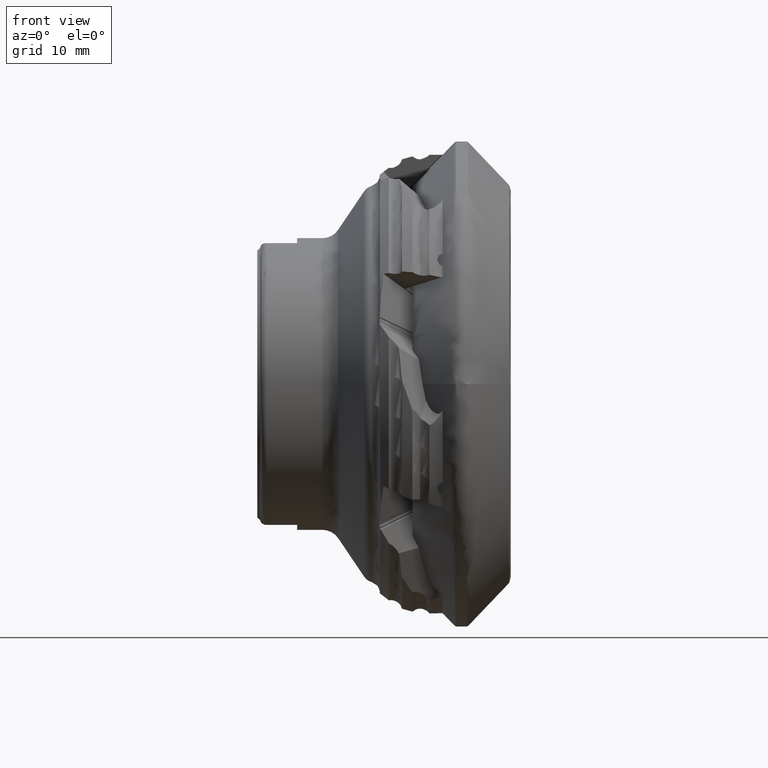
[diagram: clean part render]
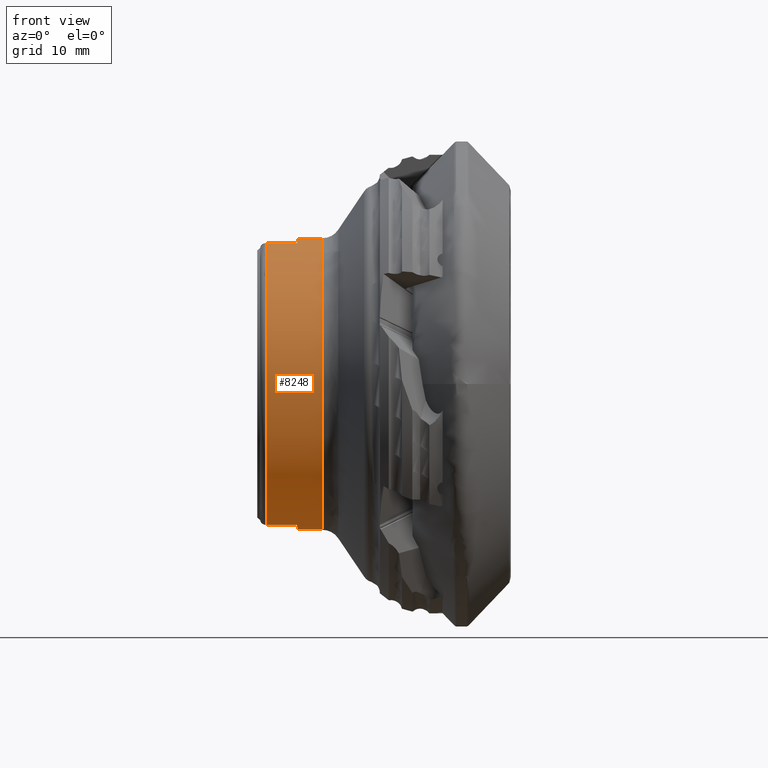
[diagram: same view with one face highlighted and labeled with its STEP entity id]
A machine part, front view. The second image highlights one B-rep face of the part: STEP entity #8248.
In plain terms, the highlighted cylindrical surface (partial cylindrical patch) has radius 23 mm, axis along (1, -0, -0).
Its self-contained STEP definition (entity closure, byte-faithful):
#276 = EDGE_CURVE ( 'NONE', #9477, #6565, #9971, .T. ) ;
#320 = VERTEX_POINT ( 'NONE', #11858 ) ;
#508 = EDGE_CURVE ( 'NONE', #8474, #6565, #8846, .T. ) ;
#662 = CARTESIAN_POINT ( 'NONE',  ( 0.0000000000000000000, 0.0000000000000000000, -22.99999999999999600 ) ) ;
#869 = FACE_OUTER_BOUND ( 'NONE', #4721, .T. ) ;
#965 = CARTESIAN_POINT ( 'NONE',  ( -28.91188524561759000, 0.0000000000000000000, 0.0000000000000000000 ) ) ;
#1382 = EDGE_CURVE ( 'NONE', #7938, #5746, #9422, .T. ) ;
#1549 = CARTESIAN_POINT ( 'NONE',  ( -32.90000000000000600, -5.924000852636052800, 22.22400085263603800 ) ) ;
#1759 = EDGE_CURVE ( 'NONE', #7938, #3006, #10114, .T. ) ;
#1764 = DIRECTION ( 'NONE',  ( 1.000000000000000000, -0.0000000000000000000, -0.0000000000000000000 ) ) ;
#1834 = DIRECTION ( 'NONE',  ( 1.000000000000000000, -0.0000000000000000000, -0.0000000000000000000 ) ) ;
#1905 = ORIENTED_EDGE ( 'NONE', *, *, #5231, .F. ) ;
#1934 = DIRECTION ( 'NONE',  ( 0.0000000000000000000, 0.0000000000000000000, -1.000000000000000000 ) ) ;
#1978 = ORIENTED_EDGE ( 'NONE', *, *, #508, .F. ) ;
#2204 = DIRECTION ( 'NONE',  ( -1.000000000000000000, -0.0000000000000000000, 0.0000000000000000000 ) ) ;
#2225 = ORIENTED_EDGE ( 'NONE', *, *, #276, .T. ) ;
#2432 = CARTESIAN_POINT ( 'NONE',  ( 0.0000000000000000000, -5.924000852636054600, 22.22400085263603100 ) ) ;
#2754 = CARTESIAN_POINT ( 'NONE',  ( -32.90000000000000600, 0.0000000000000000000, -22.99999999999999600 ) ) ;
#3006 = VERTEX_POINT ( 'NONE', #1549 ) ;
#3024 = CIRCLE ( 'NONE', #6798, 22.99999999999999600 ) ;
#3031 = VECTOR ( 'NONE', #11654, 1000.000000000000000 ) ;
#3207 = VECTOR ( 'NONE', #10917, 1000.000000000000000 ) ;
#3325 = CARTESIAN_POINT ( 'NONE',  ( -37.74999999999999300, -5.924000852636056400, 22.22400085263603500 ) ) ;
#3505 = DIRECTION ( 'NONE',  ( 1.000000000000000000, -0.0000000000000000000, -0.0000000000000000000 ) ) ;
#3837 = DIRECTION ( 'NONE',  ( 1.000000000000000000, -0.0000000000000000000, -0.0000000000000000000 ) ) ;
#4234 = VECTOR ( 'NONE', #1834, 1000.000000000000000 ) ;
#4601 = VERTEX_POINT ( 'NONE', #10254 ) ;
#4609 = AXIS2_PLACEMENT_3D ( 'NONE', #10056, #1764, #8260 ) ;
#4686 = CIRCLE ( 'NONE', #11042, 22.99999999999999600 ) ;
#4721 = EDGE_LOOP ( 'NONE', ( #1905, #6305, #7239, #5002, #6315, #6858, #2225, #1978 ) ) ;
#4853 = EDGE_CURVE ( 'NONE', #3006, #320, #4686, .T. ) ;
#5002 = ORIENTED_EDGE ( 'NONE', *, *, #1382, .T. ) ;
#5231 = EDGE_CURVE ( 'NONE', #320, #8474, #10999, .T. ) ;
#5746 = VERTEX_POINT ( 'NONE', #5811 ) ;
#5811 = CARTESIAN_POINT ( 'NONE',  ( -37.74999999999999300, -5.924000852636039500, -22.22400085263603800 ) ) ;
#6305 = ORIENTED_EDGE ( 'NONE', *, *, #4853, .F. ) ;
#6315 = ORIENTED_EDGE ( 'NONE', *, *, #7257, .F. ) ;
#6342 = CARTESIAN_POINT ( 'NONE',  ( 0.0000000000000000000, -5.924000852636040400, -22.22400085263603800 ) ) ;
#6565 = VERTEX_POINT ( 'NONE', #11460 ) ;
#6798 = AXIS2_PLACEMENT_3D ( 'NONE', #9383, #3837, #10285 ) ;
#6858 = ORIENTED_EDGE ( 'NONE', *, *, #11482, .T. ) ;
#7153 = DIRECTION ( 'NONE',  ( 1.000000000000000000, -0.0000000000000000000, -0.0000000000000000000 ) ) ;
#7239 = ORIENTED_EDGE ( 'NONE', *, *, #1759, .F. ) ;
#7257 = EDGE_CURVE ( 'NONE', #4601, #5746, #8147, .T. ) ;
#7368 = DIRECTION ( 'NONE',  ( 1.000000000000000000, -0.0000000000000000000, -0.0000000000000000000 ) ) ;
#7392 = CARTESIAN_POINT ( 'NONE',  ( 0.0000000000000000000, 2.816687638038912000E-015, 22.99999999999999600 ) ) ;
#7758 = CARTESIAN_POINT ( 'NONE',  ( -32.90000000000000600, 0.0000000000000000000, 0.0000000000000000000 ) ) ;
#7813 = VECTOR ( 'NONE', #7153, 1000.000000000000000 ) ;
#7853 = AXIS2_PLACEMENT_3D ( 'NONE', #965, #7368, #1934 ) ;
#7874 = CARTESIAN_POINT ( 'NONE',  ( -28.91188524561759000, 2.897618338086185800E-015, 22.99999999999999600 ) ) ;
#7938 = VERTEX_POINT ( 'NONE', #3325 ) ;
#7976 = CYLINDRICAL_SURFACE ( 'NONE', #4609, 22.99999999999999600 ) ;
#8147 = LINE ( 'NONE', #6342, #3207 ) ;
#8248 = ADVANCED_FACE ( 'NONE', ( #869 ), #7976, .T. ) ;
#8260 = DIRECTION ( 'NONE',  ( 0.0000000000000000000, 0.0000000000000000000, -1.000000000000000000 ) ) ;
#8474 = VERTEX_POINT ( 'NONE', #7874 ) ;
#8699 = DIRECTION ( 'NONE',  ( 0.0000000000000000000, 0.0000000000000000000, -1.000000000000000000 ) ) ;
#8846 = CIRCLE ( 'NONE', #7853, 22.99999999999999600 ) ;
#9073 = CARTESIAN_POINT ( 'NONE',  ( -37.74999999999999300, 0.0000000000000000000, 0.0000000000000000000 ) ) ;
#9383 = CARTESIAN_POINT ( 'NONE',  ( -32.90000000000000600, 0.0000000000000000000, 0.0000000000000000000 ) ) ;
#9422 = CIRCLE ( 'NONE', #10258, 22.99999999999999600 ) ;
#9477 = VERTEX_POINT ( 'NONE', #2754 ) ;
#9961 = DIRECTION ( 'NONE',  ( 0.0000000000000000000, 0.0000000000000000000, -1.000000000000000000 ) ) ;
#9971 = LINE ( 'NONE', #662, #7813 ) ;
#10056 = CARTESIAN_POINT ( 'NONE',  ( 0.0000000000000000000, 0.0000000000000000000, 0.0000000000000000000 ) ) ;
#10114 = LINE ( 'NONE', #2432, #3031 ) ;
#10254 = CARTESIAN_POINT ( 'NONE',  ( -32.90000000000000600, -5.924000852636035000, -22.22400085263603800 ) ) ;
#10258 = AXIS2_PLACEMENT_3D ( 'NONE', #9073, #3505, #9961 ) ;
#10285 = DIRECTION ( 'NONE',  ( 0.0000000000000000000, 5.329070518200751400E-015, 1.000000000000000000 ) ) ;
#10917 = DIRECTION ( 'NONE',  ( -1.000000000000000000, 0.0000000000000000000, 0.0000000000000000000 ) ) ;
#10999 = LINE ( 'NONE', #7392, #4234 ) ;
#11042 = AXIS2_PLACEMENT_3D ( 'NONE', #7758, #2204, #8699 ) ;
#11460 = CARTESIAN_POINT ( 'NONE',  ( -28.91188524561759000, 0.0000000000000000000, -22.99999999999999600 ) ) ;
#11482 = EDGE_CURVE ( 'NONE', #4601, #9477, #3024, .T. ) ;
#11654 = DIRECTION ( 'NONE',  ( 1.000000000000000000, -0.0000000000000000000, -0.0000000000000000000 ) ) ;
#11858 = CARTESIAN_POINT ( 'NONE',  ( -32.90000000000000600, 2.816687638038912000E-015, 22.99999999999999600 ) ) ;